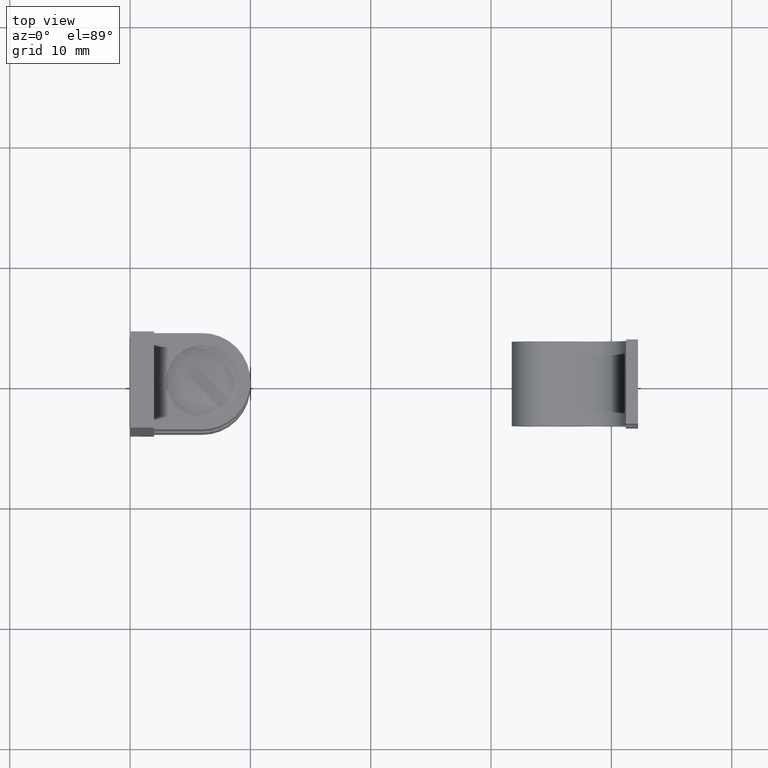
[diagram: clean part render]
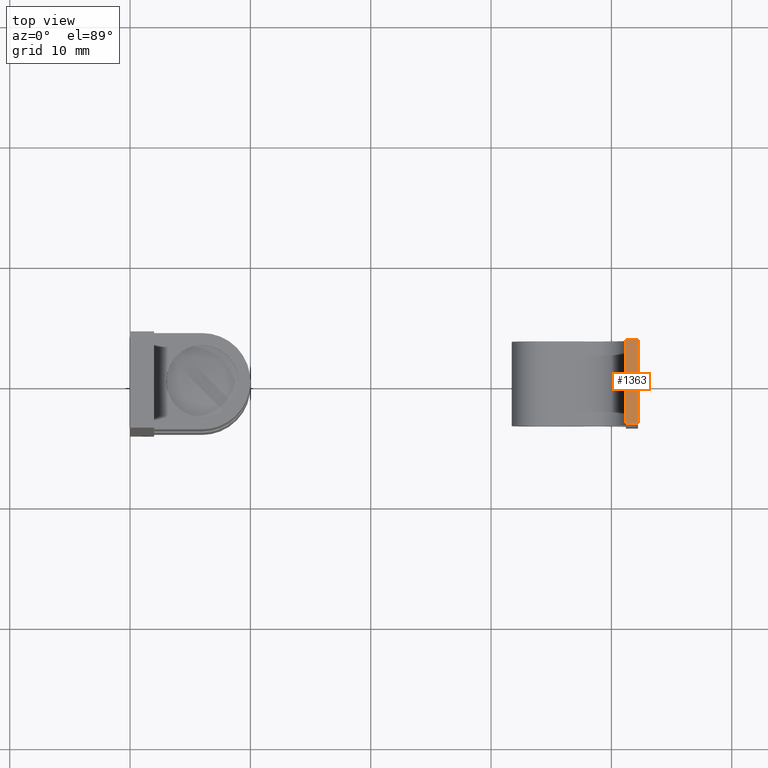
[diagram: same view with one face highlighted and labeled with its STEP entity id]
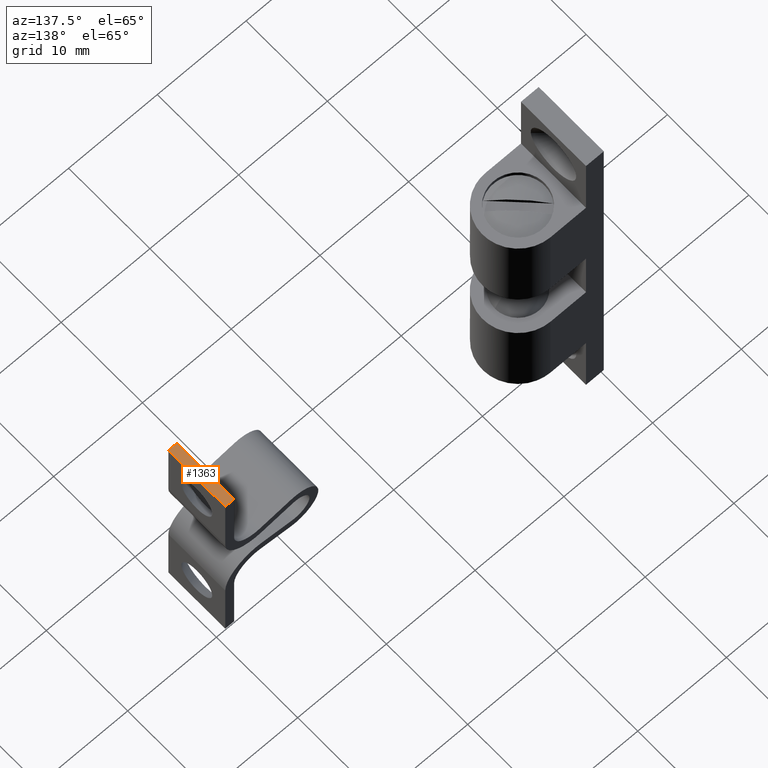
[diagram: same view with one face highlighted and labeled with its STEP entity id]
A machine part, top view. The second image highlights one B-rep face of the part: STEP entity #1363.
A second angle (auxiliary view) of the same face is appended — the face is thin or edge-on in the first view.
In plain terms, the highlighted face is a freeform B-spline surface patch.
Its self-contained STEP definition (entity closure, byte-faithful):
#981=CARTESIAN_POINT('',(41.205122876470497,3.500000000000060,12.0));
#982=VERTEX_POINT('',#981);
#990=CARTESIAN_POINT('',(42.205122876470597,3.500000000000060,12.0));
#991=VERTEX_POINT('',#990);
#992=CARTESIAN_POINT('',(42.205122876470597,3.500000000000060,12.0));
#993=CARTESIAN_POINT('',(41.205122876470497,3.500000000000060,12.0));
#994=QUASI_UNIFORM_CURVE('',1,(#992,#993),.UNSPECIFIED.,.F.,.U.);
#995=EDGE_CURVE('',#991,#982,#994,.T.);
#1165=CARTESIAN_POINT('',(41.205122876470497,-3.499999999999835,12.0));
#1166=VERTEX_POINT('',#1165);
#1329=CARTESIAN_POINT('',(42.205122876470597,-3.499999999999835,12.0));
#1330=VERTEX_POINT('',#1329);
#1336=CARTESIAN_POINT('',(42.205122876470597,-3.499999999999835,12.0));
#1337=CARTESIAN_POINT('',(41.205122876470497,-3.499999999999835,12.0));
#1338=QUASI_UNIFORM_CURVE('',1,(#1336,#1337),.UNSPECIFIED.,.F.,.U.);
#1339=EDGE_CURVE('',#1330,#1166,#1338,.T.);
#1344=CARTESIAN_POINT('',(42.255073900479609,-3.849649986432473,12.0));
#1345=CARTESIAN_POINT('',(41.155173926703142,-3.849649986432473,12.0));
#1346=CARTESIAN_POINT('',(42.255073900479609,3.849650174187327,12.0));
#1347=CARTESIAN_POINT('',(41.155173926703142,3.849650174187327,12.0));
#1348=B_SPLINE_SURFACE_WITH_KNOTS('',1,1,((#1344,#1346),(#1345,#1347)),.UNSPECIFIED.,.F.,.F.,.U.,(2,2),(2,2),(0.041707479992509,0.958290791472793),(0.0,7.699300160619799),.UNSPECIFIED.);
#1349=ORIENTED_EDGE('',*,*,#995,.T.);
#1350=CARTESIAN_POINT('',(41.205122876470497,-3.499999999999835,12.0));
#1351=CARTESIAN_POINT('',(41.205122876470497,3.500000000000060,12.0));
#1352=QUASI_UNIFORM_CURVE('',1,(#1350,#1351),.UNSPECIFIED.,.F.,.U.);
#1353=EDGE_CURVE('',#1166,#982,#1352,.T.);
#1354=ORIENTED_EDGE('',*,*,#1353,.F.);
#1355=ORIENTED_EDGE('',*,*,#1339,.F.);
#1356=CARTESIAN_POINT('',(42.205122876470597,-3.499999999999835,12.0));
#1357=CARTESIAN_POINT('',(42.205122876470597,3.500000000000060,12.0));
#1358=QUASI_UNIFORM_CURVE('',1,(#1356,#1357),.UNSPECIFIED.,.F.,.U.);
#1359=EDGE_CURVE('',#1330,#991,#1358,.T.);
#1360=ORIENTED_EDGE('',*,*,#1359,.T.);
#1361=EDGE_LOOP('',(#1349,#1354,#1355,#1360));
#1362=FACE_OUTER_BOUND('',#1361,.T.);
#1363=ADVANCED_FACE('',(#1362),#1348,.F.);